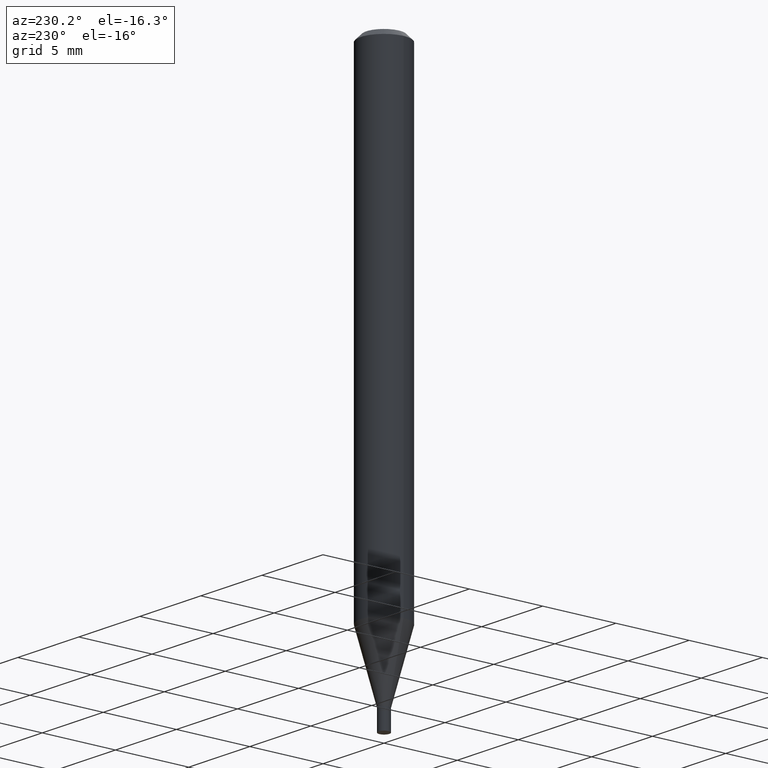
[diagram: clean part render]
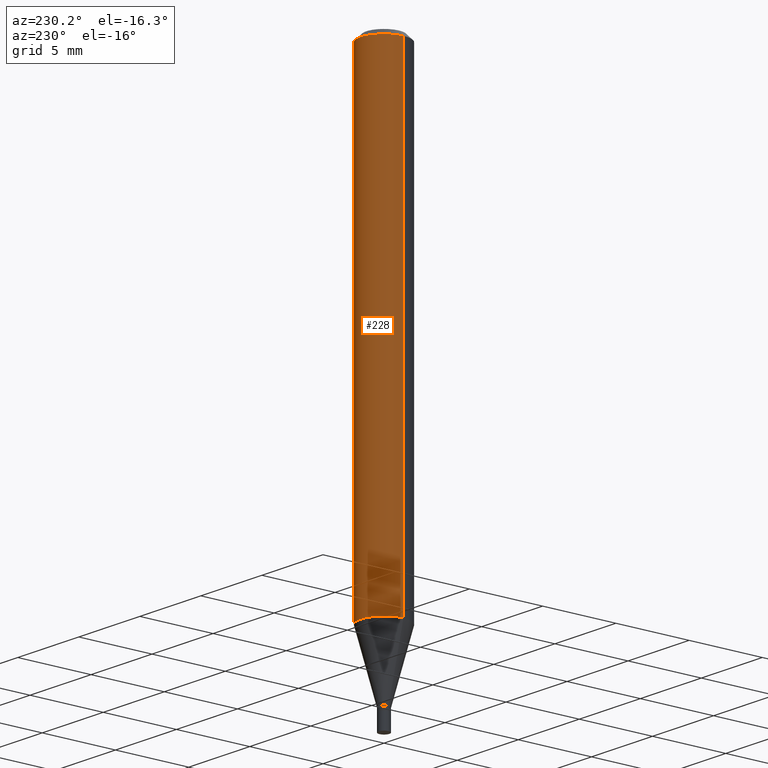
[diagram: same view with one face highlighted and labeled with its STEP entity id]
A machine part, auxiliary view. The second image highlights one B-rep face of the part: STEP entity #228.
In plain terms, the highlighted cylindrical surface (edge-blend (fillet) strip) has radius 1.5875 mm, axis along (-0, 0, 1).
Its self-contained STEP definition (entity closure, byte-faithful):
#20 = DIRECTION ( 'NONE',  ( -2.445468806185136877E-29, 3.491481338843145188E-15, 1.000000000000000000 ) ) ;
#43 = FACE_OUTER_BOUND ( 'NONE', #174, .T. ) ;
#46 = DIRECTION ( 'NONE',  ( -2.445468806185136597E-29, 3.491481338843145583E-15, 1.000000000000000000 ) ) ;
#51 = CARTESIAN_POINT ( 'NONE',  ( 3.668203209277705088E-31, -5.237222008264718399E-17, -0.01499999999999999944 ) ) ;
#52 = LINE ( 'NONE', #344, #367 ) ;
#82 = EDGE_CURVE ( 'NONE', #339, #143, #313, .T. ) ;
#83 = LINE ( 'NONE', #235, #119 ) ;
#84 = DIRECTION ( 'NONE',  ( 1.000000000000000000, -6.982962677686266711E-15, 0.000000000000000000 ) ) ;
#114 = AXIS2_PLACEMENT_3D ( 'NONE', #335, #46, #125 ) ;
#119 = VECTOR ( 'NONE', #165, 39.37007874015748143 ) ;
#121 = EDGE_CURVE ( 'NONE', #210, #339, #83, .T. ) ;
#125 = DIRECTION ( 'NONE',  ( 1.000000000000000000, -6.982962677686266711E-15, 4.876176775795935793E-29 ) ) ;
#132 = ORIENTED_EDGE ( 'NONE', *, *, #290, .T. ) ;
#143 = VERTEX_POINT ( 'NONE', #449 ) ;
#165 = DIRECTION ( 'NONE',  ( -2.445468806185136877E-29, 3.491481338843145188E-15, 1.000000000000000000 ) ) ;
#174 = EDGE_LOOP ( 'NONE', ( #132, #432, #438, #308 ) ) ;
#183 = AXIS2_PLACEMENT_3D ( 'NONE', #51, #293, #84 ) ;
#210 = VERTEX_POINT ( 'NONE', #452 ) ;
#215 = DIRECTION ( 'NONE',  ( -2.445468806185136597E-29, 3.491481338843145583E-15, 1.000000000000000000 ) ) ;
#228 = ADVANCED_FACE ( 'NONE', ( #43 ), #407, .T. ) ;
#235 = CARTESIAN_POINT ( 'NONE',  ( 0.06250000000000000000, -4.364351673553916694E-16, 3.047610484872459871E-30 ) ) ;
#249 = CARTESIAN_POINT ( 'NONE',  ( 3.099293164162429184E-29, -4.424969240625031786E-15, -1.267361561236694190 ) ) ;
#253 = CIRCLE ( 'NONE', #380, 0.06250000000000000000 ) ;
#290 = EDGE_CURVE ( 'NONE', #210, #363, #253, .T. ) ;
#293 = DIRECTION ( 'NONE',  ( -2.445468806185136597E-29, 3.491481338843145583E-15, 1.000000000000000000 ) ) ;
#308 = ORIENTED_EDGE ( 'NONE', *, *, #121, .F. ) ;
#313 = CIRCLE ( 'NONE', #183, 0.06250000000000000000 ) ;
#324 = DIRECTION ( 'NONE',  ( 1.000000000000000000, -6.982962677686262766E-15, 0.000000000000000000 ) ) ;
#335 = CARTESIAN_POINT ( 'NONE',  ( 0.000000000000000000, 0.000000000000000000, 0.000000000000000000 ) ) ;
#339 = VERTEX_POINT ( 'NONE', #458 ) ;
#344 = CARTESIAN_POINT ( 'NONE',  ( -0.06250000000000000000, 4.440892098500626162E-16, -3.074334431409316114E-30 ) ) ;
#363 = VERTEX_POINT ( 'NONE', #423 ) ;
#367 = VECTOR ( 'NONE', #20, 39.37007874015748143 ) ;
#380 = AXIS2_PLACEMENT_3D ( 'NONE', #249, #215, #324 ) ;
#407 = CYLINDRICAL_SURFACE ( 'NONE', #114, 0.06250000000000000000 ) ;
#423 = CARTESIAN_POINT ( 'NONE',  ( -0.06249999999999999306, -3.980880030774969170E-15, -1.267361561236694190 ) ) ;
#432 = ORIENTED_EDGE ( 'NONE', *, *, #435, .T. ) ;
#435 = EDGE_CURVE ( 'NONE', #363, #143, #52, .T. ) ;
#438 = ORIENTED_EDGE ( 'NONE', *, *, #82, .F. ) ;
#449 = CARTESIAN_POINT ( 'NONE',  ( -0.06250000000000000000, -1.794581520503777014E-15, -0.01499999999999999944 ) ) ;
#452 = CARTESIAN_POINT ( 'NONE',  ( 0.06249999999999999306, -4.861404407980422667E-15, -1.267361561236694190 ) ) ;
#458 = CARTESIAN_POINT ( 'NONE',  ( 0.06250000000000000000, -4.888073874380388472E-16, -0.01499999999999999944 ) ) ;